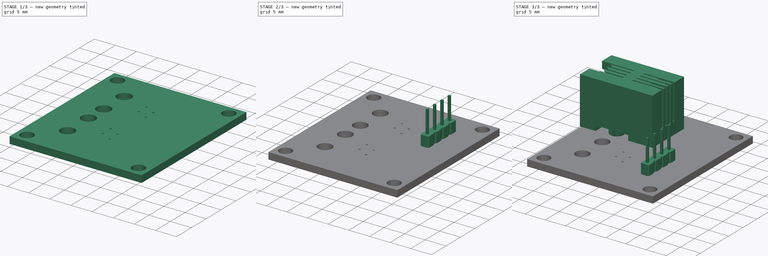
[diagram: build sequence overview — one tinted view per stage of 3, left to right]
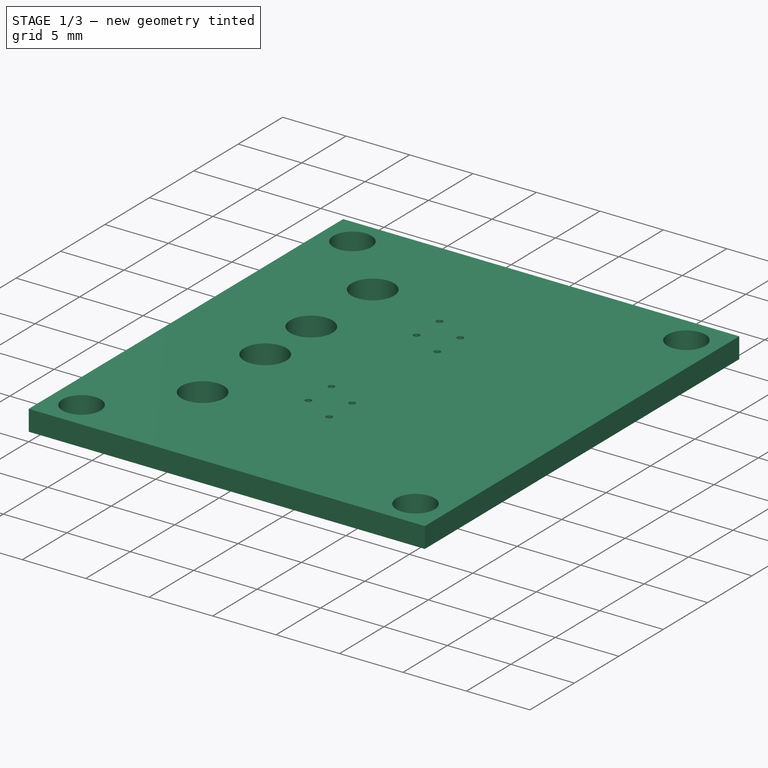
[diagram: stage 1 of 3 — iso view after this stage's code; geometry added in this stage tinted green]
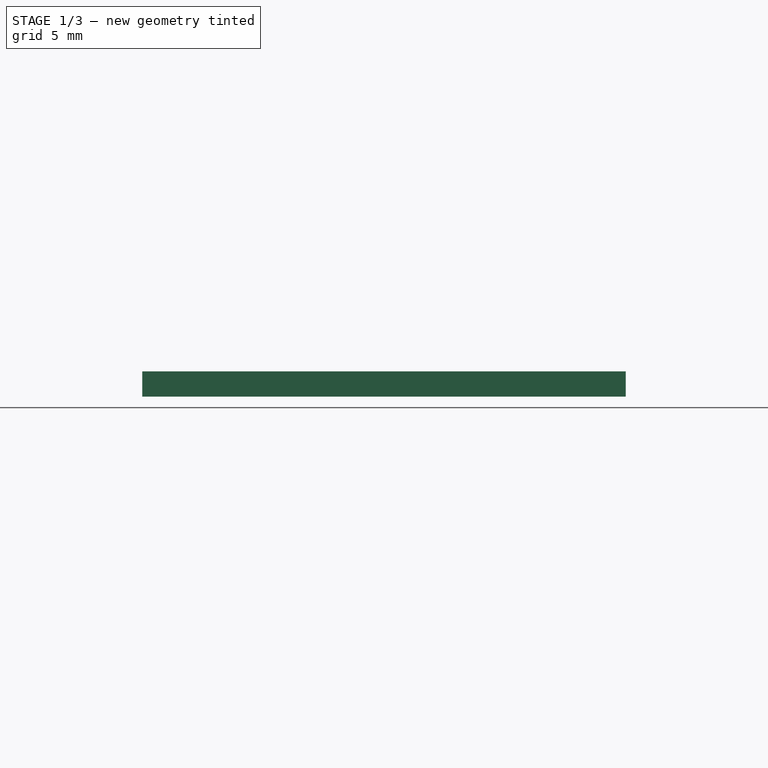
[diagram: stage 1 of 3 — front view after this stage's code; geometry added in this stage tinted green]
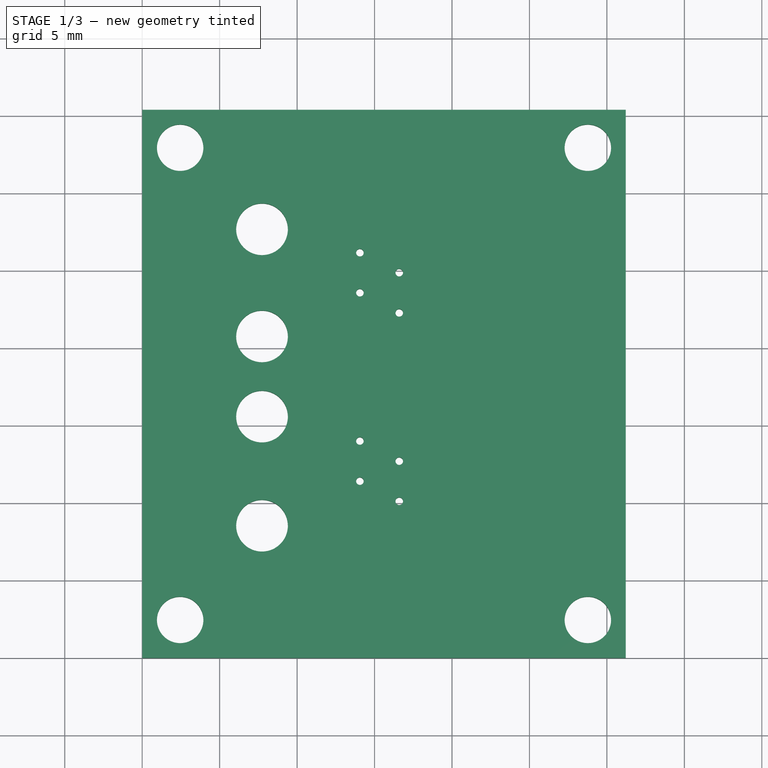
[diagram: stage 1 of 3 — top view after this stage's code; geometry added in this stage tinted green]
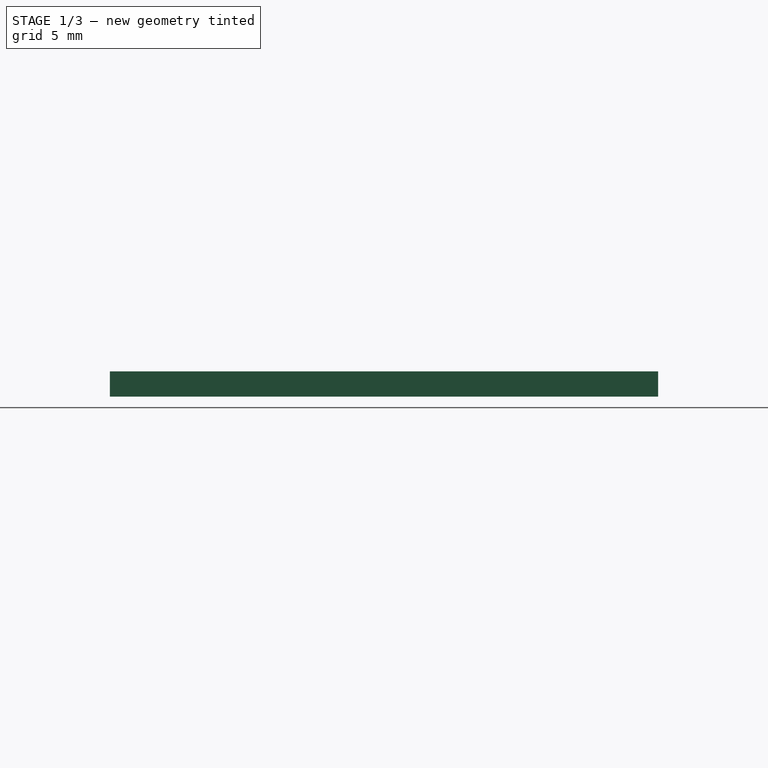
[diagram: stage 1 of 3 — right view after this stage's code; geometry added in this stage tinted green]
FCSTD DOCUMENT  (FreeCAD 0.16R6138 (Git))
Label: RJ9_PCB
License: CreativeCommons Attribution
LicenseURL: http://creativecommons.org/licenses/by/4.0/
objects: Part::Feature×6, App::DocumentObjectGroup×6, Sketcher::SketchObject×2, Part::FeaturePython×2, Part::MultiFuse×2, PartDesign::Pad×1, PartDesign::Pocket×1
note: 16 computed .brp shape members not serialized (recipe doc carries the construction recipe); baked Part::Feature solids carry a one-line shape summary decoded from their .brp

FEATURE [Part::Feature] Part__Feature  label="RJ9"
  Placement = pos=(9.04291,12.0526,1.87734) rot=(0,0,1;3.14159rad)
  shape: bbox 18 x 11.18 x 15.42 mm, 163 faces (baked)
FEATURE [Part::Feature] Part__Feature001  label="broches"
  Placement = pos=(0,0,0.13) rot=(0,0,1;0rad)
  shape: bbox 9.62 x 2 x 8 mm, 70 faces (baked)
FEATURE [Part::Feature] Part__Feature031  label="COMPOUND031"
  shape: bbox 2 x 2 x 1 mm, 8 faces (baked)
FEATURE [Part::Feature] Part__Feature035  label="COMPOUND035"
  shape: bbox 2 x 2 x 1 mm, 8 faces (baked)
FEATURE [Part::Feature] Part__Feature036  label="COMPOUND036"
  shape: bbox 2 x 2 x 1 mm, 8 faces (baked)
FEATURE [Part::Feature] Part__Feature032  label="COMPOUND032"
  shape: bbox 2 x 2 x 1 mm, 8 faces (baked)
FEATURE [Sketcher::SketchObject] Sketch
  sketch-geometry (16):
    g0: LineSegment StartX=31.22 StartY=35.39 StartZ=0 EndX=0 EndY=35.39 EndZ=0
    g1: LineSegment StartX=0 StartY=35.39 StartZ=0 EndX=0 EndY=0 EndZ=0
    g2: LineSegment StartX=0 StartY=0 StartZ=0 EndX=31.22 EndY=0 EndZ=0
    g3: LineSegment StartX=31.22 StartY=0 StartZ=0 EndX=31.22 EndY=35.39 EndZ=0
    g4: Circle CenterX=2.45 CenterY=32.94 CenterZ=0 NormalX=0 NormalY=0 NormalZ=1 Radius=1.5
    g5: Circle CenterX=2.45 CenterY=2.45 CenterZ=0 NormalX=0 NormalY=0 NormalZ=1 Radius=1.5
    g6: Circle CenterX=28.77 CenterY=32.94 CenterZ=0 NormalX=0 NormalY=0 NormalZ=1 Radius=1.5
    g7: Circle CenterX=28.77 CenterY=2.45 CenterZ=0 NormalX=0 NormalY=0 NormalZ=1 Radius=1.5
    g8: LineSegment [constr] StartX=0 StartY=32.94 StartZ=0 EndX=2.45 EndY=32.94 EndZ=0
    g9: LineSegment [constr] StartX=2.45 StartY=35.39 StartZ=0 EndX=2.45 EndY=32.94 EndZ=0
    g10: LineSegment [constr] StartX=28.77 StartY=35.39 StartZ=0 EndX=28.77 EndY=32.94 EndZ=0
    g11: LineSegment [constr] StartX=31.22 StartY=32.94 StartZ=0 EndX=28.77 EndY=32.94 EndZ=0
    g12: LineSegment [constr] StartX=31.22 StartY=2.45 StartZ=0 EndX=28.77 EndY=2.45 EndZ=0
    g13: LineSegment [constr] StartX=28.77 StartY=0 StartZ=0 EndX=28.77 EndY=2.45 EndZ=0
    g14: LineSegment [constr] StartX=2.45 StartY=0 StartZ=0 EndX=2.45 EndY=2.45 EndZ=0
    g15: LineSegment [constr] StartX=0 StartY=2.45 StartZ=0 EndX=2.45 EndY=2.45 EndZ=0
  constraints (47):
    c: Coincident(g0,g1)
    c: Coincident(g1,g2)
    c: Coincident(g2,g3)
    c: Coincident(g3,g0)
    c: Horizontal(g0)
    c: Horizontal(g2)
    c: Vertical(g1)
    c: Vertical(g3)
    c: Coincident(g1,g-1)
    c: Distance(g3) = 35.39
    c: Radius(g4) = 1.5
    c: DistanceX(g-2,g4) = 2.45
    c: Distance(g4,g0) = 2.45
    c: Equal(g6,g7)
    c: Equal(g7,g5)
    c: Equal(g5,g4)
    c: Distance(g0) = 31.22
    c: PointOnObject(g8,g1)
    c: Horizontal(g8)
    c: PointOnObject(g9,g0)
    c: Vertical(g9)
    c: Coincident(g8,g4)
    c: Coincident(g9,g4)
    c: PointOnObject(g10,g0)
    c: Vertical(g10)
    c: PointOnObject(g11,g3)
    c: Horizontal(g11)
    c: PointOnObject(g12,g3)
    c: Horizontal(g12)
    c: PointOnObject(g13,g2)
    c: Vertical(g14)
    c: PointOnObject(g15,g1)
    c: Horizontal(g15)
    c: Vertical(g13)
    c: Coincident(g13,g7)
    c: Coincident(g14,g5)
    c: Coincident(g15,g5)
    c: Coincident(g12,g7)
    c: Coincident(g10,g6)
    c: Coincident(g11,g6)
    c: Equal(g9,g10)
    c: Equal(g10,g14)
    c: Equal(g14,g13)
    c: PointOnObject(g14,g2)
    c: Equal(g12,g11)
    c: Equal(g11,g15)
    c: Equal(g15,g8)
FEATURE [PartDesign::Pad] Pad  label="PCB_001"
  Length = 1.63
  Length2 = 100
  Sketch = -> Sketch
  Type = 0
FEATURE [App::DocumentObjectGroup] Groupe003  label="GR_broches"
  Group = -> [Fusion001,Clone001]
FEATURE [App::DocumentObjectGroup] Groupe  label="Import"
  Group = -> [Groupe002,Groupe003,Groupe004]
FEATURE [Sketcher::SketchObject] Sketch001
  Placement = pos=(0,0,0) rot=(1,0,0;3.14159rad)
  Support = -> Pad [Face9]
  sketch-geometry (15):
    g0: Circle CenterX=7.73473 CenterY=-8.53341 CenterZ=0 NormalX=0 NormalY=0 NormalZ=1 Radius=1.6687
    g1: LineSegment [constr] StartX=7.73473 StartY=-8.53341 StartZ=0 EndX=7.73473 EndY=-27.6737 EndZ=0
    g2: Circle CenterX=7.73473 CenterY=-15.5784 CenterZ=0 NormalX=0 NormalY=0 NormalZ=1 Radius=1.6687
    g3: Circle CenterX=7.73473 CenterY=-20.7561 CenterZ=0 NormalX=0 NormalY=0 NormalZ=1 Radius=1.6687
    g4: Circle CenterX=7.73473 CenterY=-27.6737 CenterZ=0 NormalX=0 NormalY=0 NormalZ=1 Radius=1.6687
    g5: Circle CenterX=16.5944 CenterY=-10.1126 CenterZ=0 NormalX=0 NormalY=0 NormalZ=1 Radius=0.244992
    g6: Circle CenterX=14.0545 CenterY=-11.4126 CenterZ=0 NormalX=0 NormalY=0 NormalZ=1 Radius=0.244992
    g7: Circle CenterX=14.0545 CenterY=-14.0043 CenterZ=0 NormalX=0 NormalY=0 NormalZ=1 Radius=0.244992
    g8: Circle CenterX=16.5944 CenterY=-12.7034 CenterZ=0 NormalX=0 NormalY=0 NormalZ=1 Radius=0.244992
    g9: Circle CenterX=16.5944 CenterY=-22.2774 CenterZ=0 NormalX=0 NormalY=0 NormalZ=1 Radius=0.244992
    g10: Circle CenterX=16.5944 CenterY=-24.8728 CenterZ=0 NormalX=0 NormalY=0 NormalZ=1 Radius=0.244992
    g11: Circle CenterX=14.0545 CenterY=-23.5787 CenterZ=0 NormalX=0 NormalY=0 NormalZ=1 Radius=0.244992
    g12: Circle CenterX=14.0545 CenterY=-26.1633 CenterZ=0 NormalX=0 NormalY=0 NormalZ=1 Radius=0.244992
    g13: LineSegment [constr] StartX=16.5944 StartY=-10.1126 StartZ=0 EndX=16.5944 EndY=-24.8728 EndZ=0
    g14: LineSegment [constr] StartX=14.0545 StartY=-11.4126 StartZ=0 EndX=14.0545 EndY=-26.1633 EndZ=0
  constraints (45):
    c: DistanceX(g0) = 7.73473
    c: DistanceY(g0) = -8.53341
    c: Radius(g0) = 1.6687
    c: Vertical(g1)
    c: Coincident(g1,g0)
    c: PointOnObject(g2,g1)
    c: PointOnObject(g3,g1)
    c: PointOnObject(g4,g1)
    c: Equal(g2,g0)
    c: Equal(g0,g3)
    c: Equal(g3,g4)
    c: DistanceY(g4) = -27.6737
    c: DistanceY(g3) = -20.7561
    c: DistanceY(g2) = -15.5784
    c: Coincident(g1,g4)
    c: Radius(g5) = 0.244992
    c: DistanceX(g5) = 16.5944
    c: DistanceY(g5) = -10.1126
    c: Equal(g6,g8)
    c: Equal(g8,g5)
    c: Equal(g5,g7)
    c: Equal(g7,g9)
    c: Equal(g9,g11)
    c: Equal(g11,g10)
    c: Equal(g10,g12)
    c: Vertical(g13)
    c: Coincident(g13,g5)
    c: PointOnObject(g8,g13)
    c: DistanceY(g8) = -12.7034
    c: PointOnObject(g9,g13)
    c: PointOnObject(g10,g13)
    c: DistanceY(g9) = -22.2774
    c: DistanceY(g10) = -24.8728
    c: Coincident(g13,g10)
    c: DistanceX(g6) = 14.0545
    c: DistanceY(g6) = -11.4126
    c: Vertical(g14)
    c: Coincident(g14,g6)
    c: PointOnObject(g7,g14)
    c: PointOnObject(g11,g14)
    c: PointOnObject(g12,g14)
    c: DistanceY(g7) = -14.0043
    c: DistanceY(g11) = -23.5787
    c: DistanceY(g12) = -26.1633
    c: Coincident(g14,g12)
FEATURE [PartDesign::Pocket] Pocket  label="PCB_002"
  Length = 5
  Sketch = -> Sketch001
  Type = 0
FEATURE [App::DocumentObjectGroup] Groupe005  label="GR_PCB"
  Group = -> [Pad,Pocket]
FEATURE [App::DocumentObjectGroup] Groupe001  label="Pieces"
  Group = -> [Groupe005]
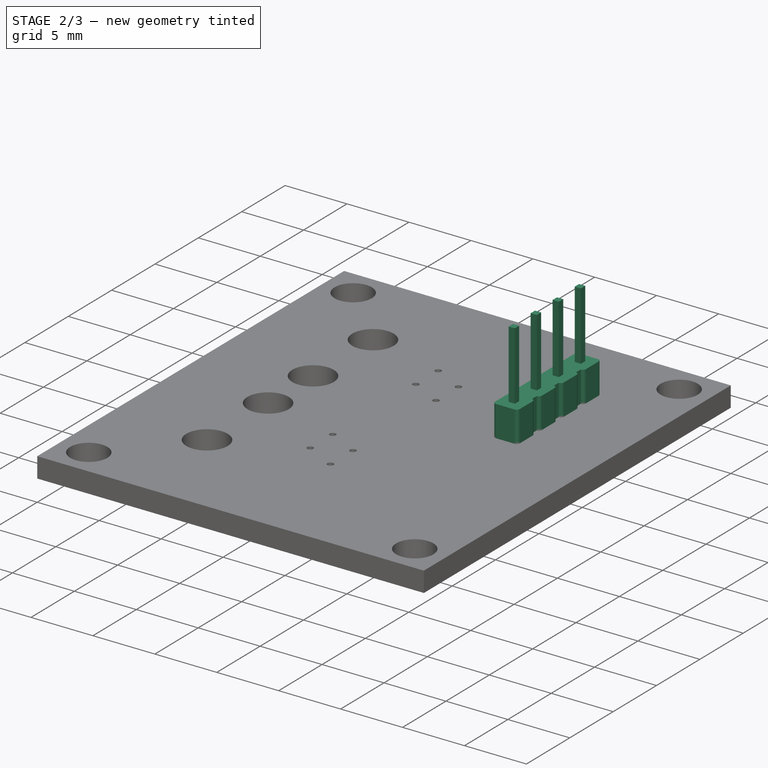
[diagram: stage 2 of 3 — iso view after this stage's code; geometry added in this stage tinted green]
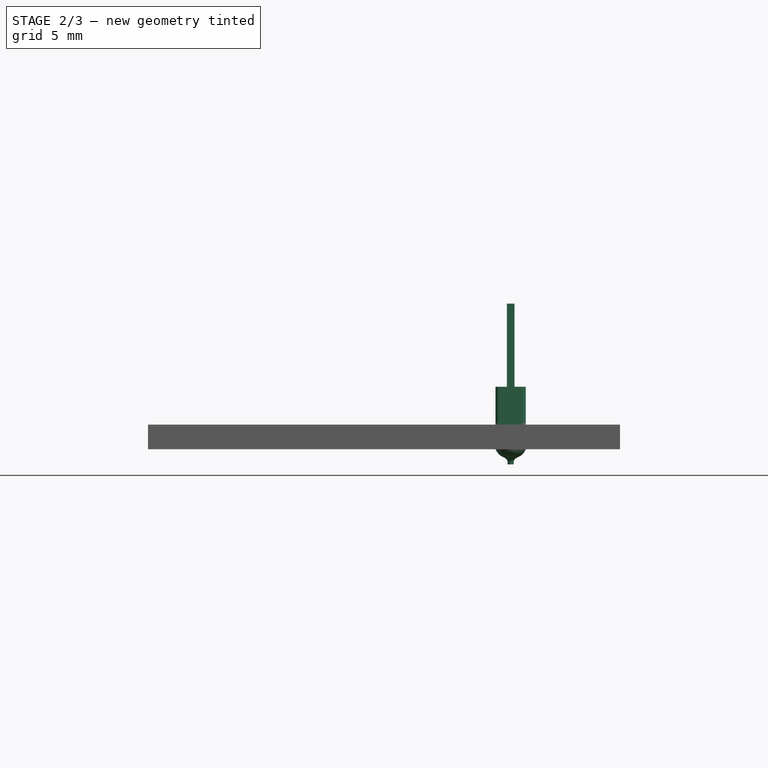
[diagram: stage 2 of 3 — front view after this stage's code; geometry added in this stage tinted green]
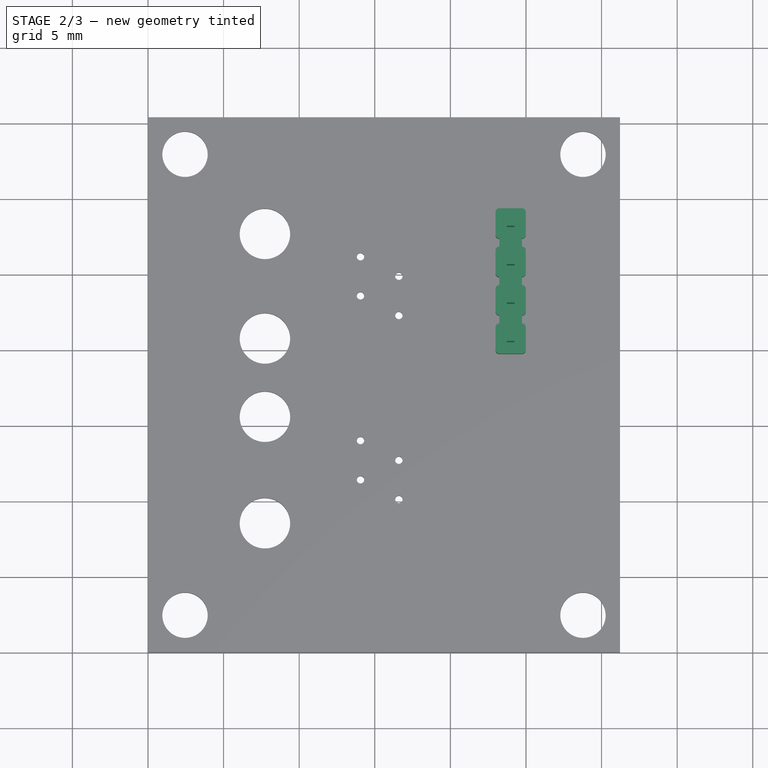
[diagram: stage 2 of 3 — top view after this stage's code; geometry added in this stage tinted green]
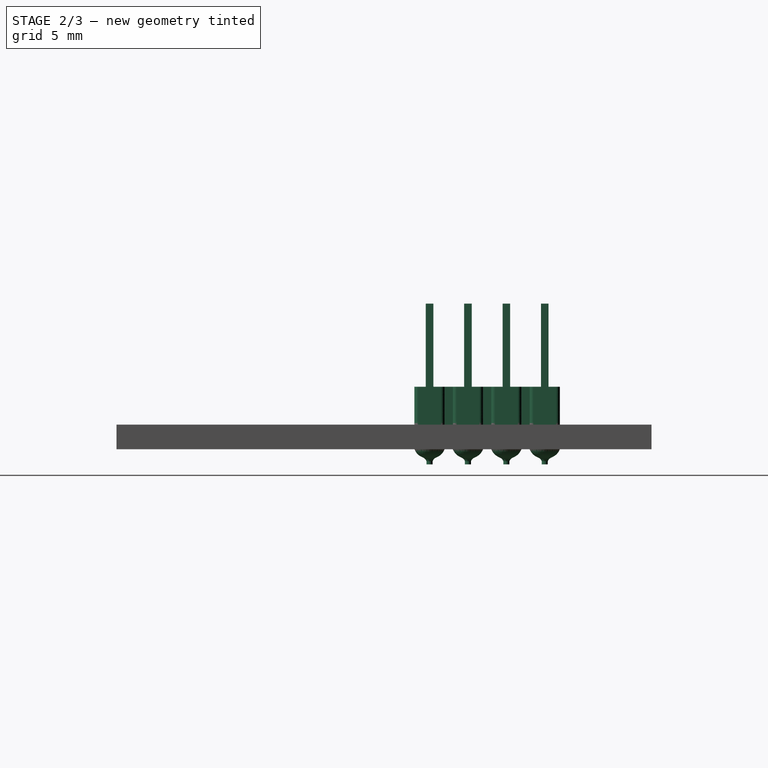
[diagram: stage 2 of 3 — right view after this stage's code; geometry added in this stage tinted green]
FEATURE [App::DocumentObjectGroup] Groupe002  label="GR_RJ9"
  Group = -> [Part__Feature,Clone]
FEATURE [Part::MultiFuse] Fusion
  Shapes = -> [Part__Feature031,Part__Feature032,Part__Feature035,Part__Feature036]
FEATURE [Part::MultiFuse] Fusion001
  Placement = pos=(52.9877,3.58769,5.17686e-06) rot=(0,0,1;1.5708rad)
  Shapes = -> [Part__Feature001,Fusion]
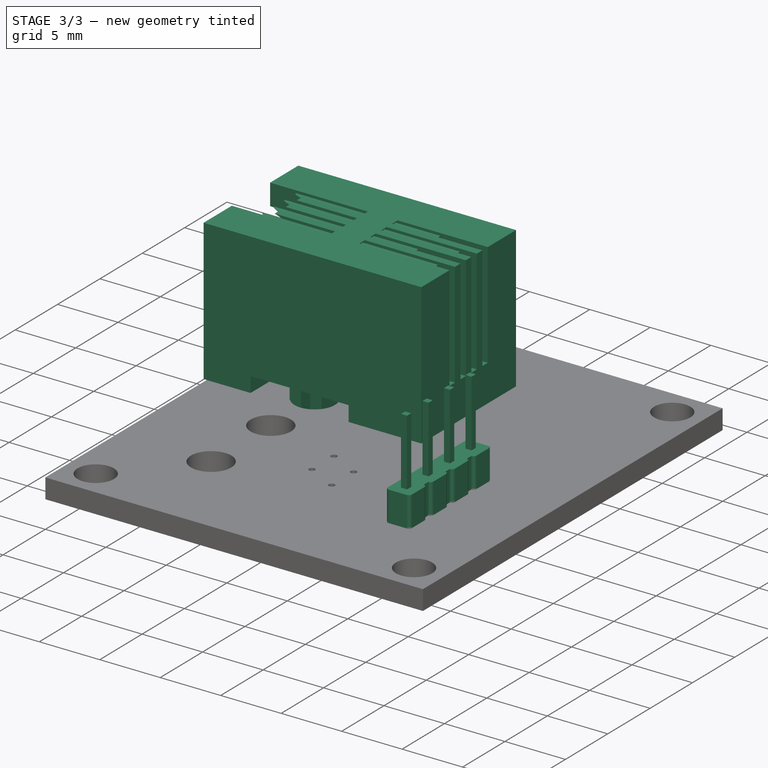
[diagram: stage 3 of 3 — iso view after this stage's code; geometry added in this stage tinted green]
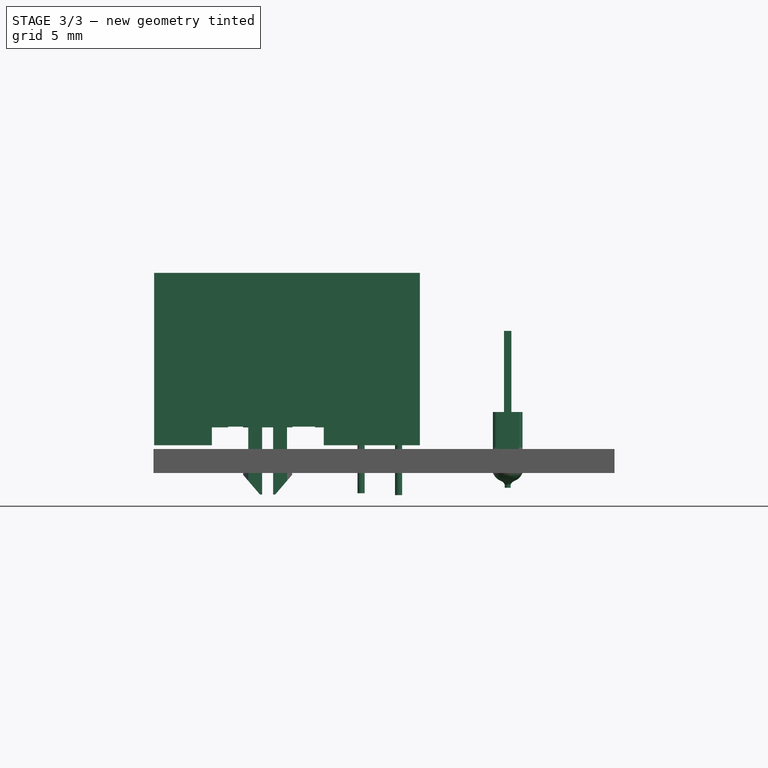
[diagram: stage 3 of 3 — front view after this stage's code; geometry added in this stage tinted green]
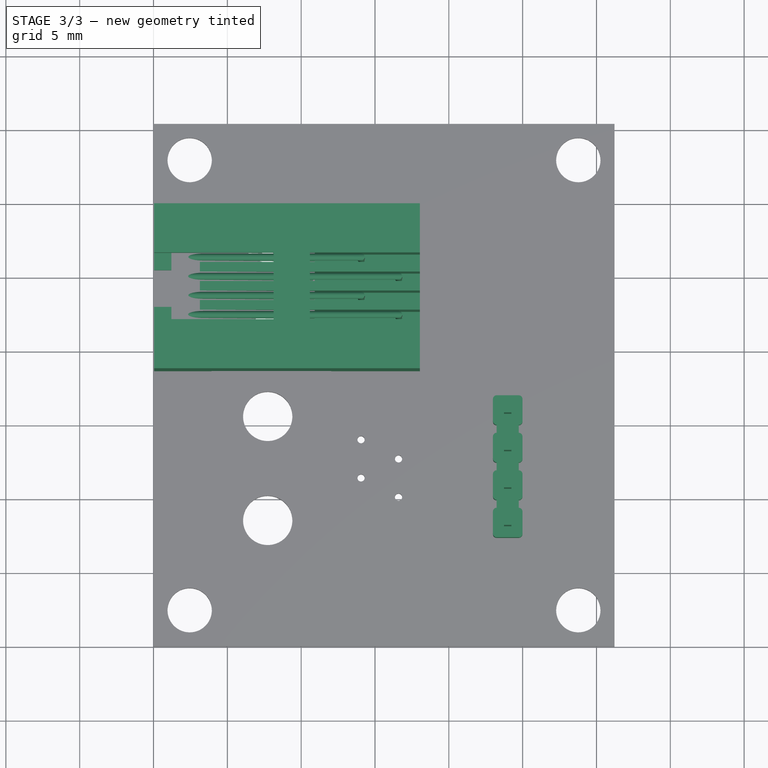
[diagram: stage 3 of 3 — top view after this stage's code; geometry added in this stage tinted green]
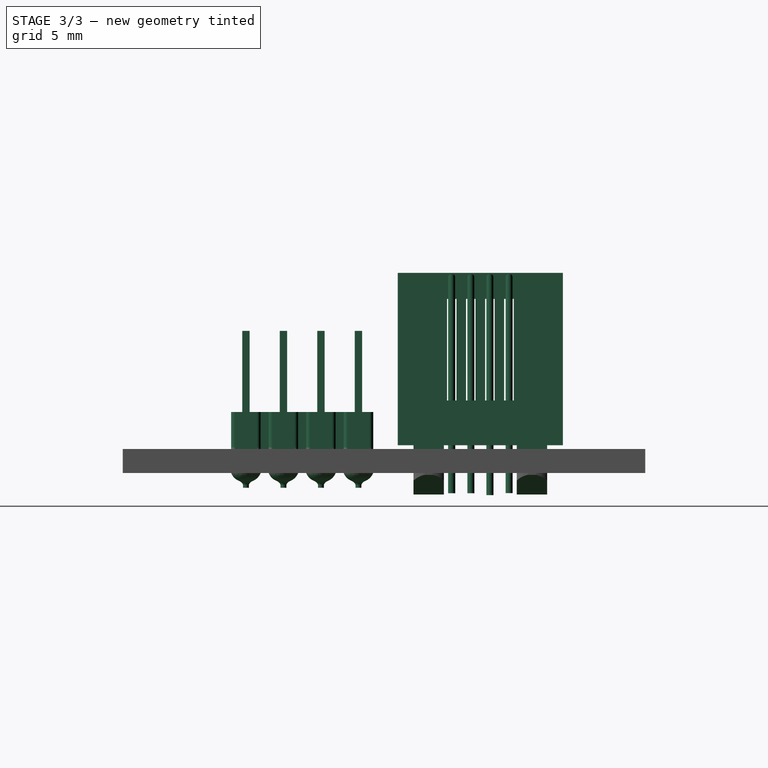
[diagram: stage 3 of 3 — right view after this stage's code; geometry added in this stage tinted green]
FEATURE [App::DocumentObjectGroup] Groupe004  label="GR_soudures"
FEATURE [Part::FeaturePython] Clone  label="Clone of RJ9"  # Draft clone (typed FeaturePython)
  Objects = -> [Part__Feature]
  Placement = pos=(9.04291,24.2185,1.87734) rot=(0,0,1;3.14159rad)
  Scale = (1,1,1)
FEATURE [Part::FeaturePython] Clone001  label="Clone of Fusion001"  # Draft clone (typed FeaturePython)
  Objects = -> [Fusion001]
  Placement = pos=(52.9877,-8.7761,4.31405e-06) rot=(0,0,1;1.5708rad)
  Scale = (1,1,1)
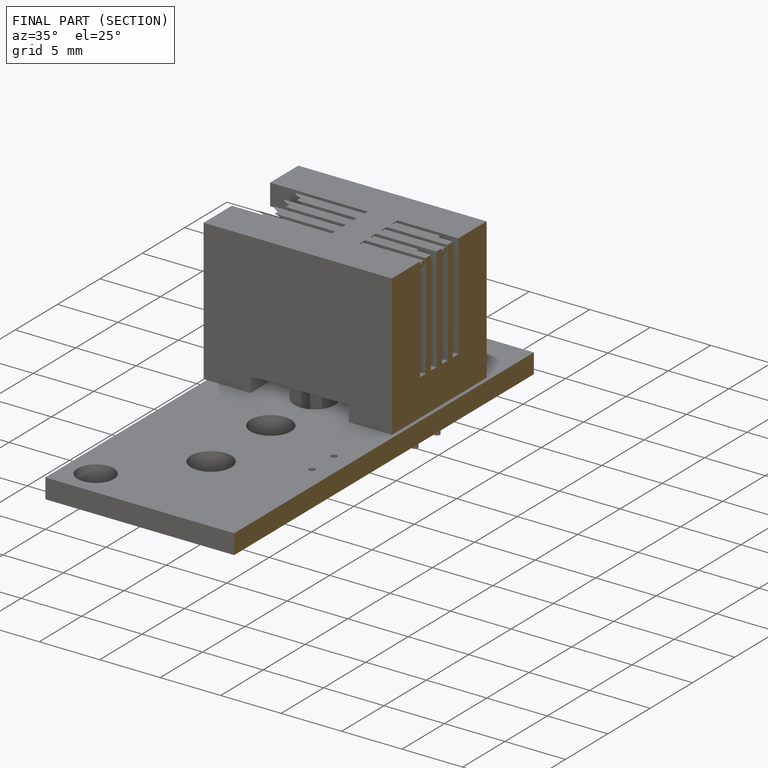
[diagram: finished part — half-section view (interior)]
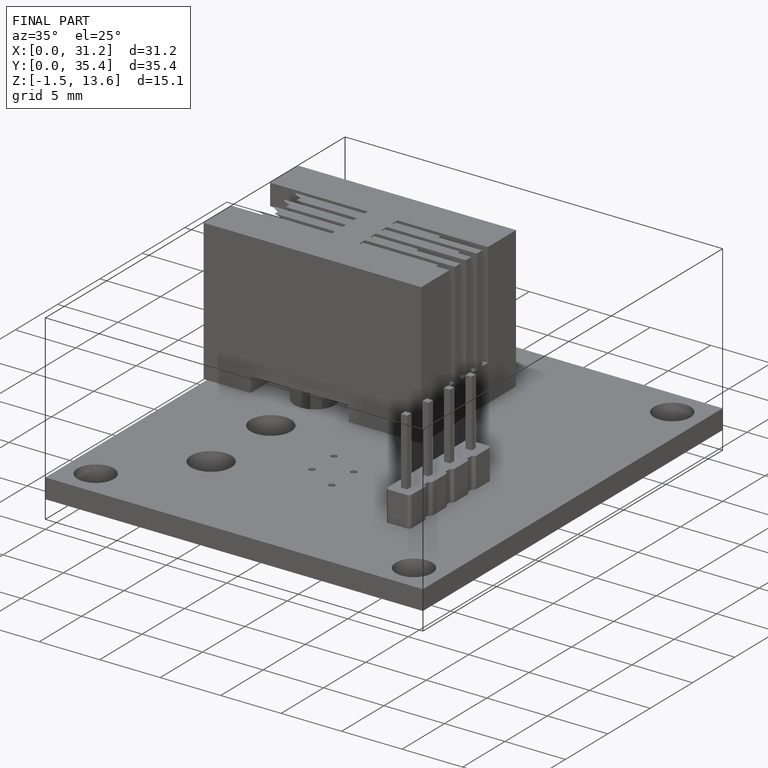
[diagram: finished part — iso view with bounding-box wireframe]
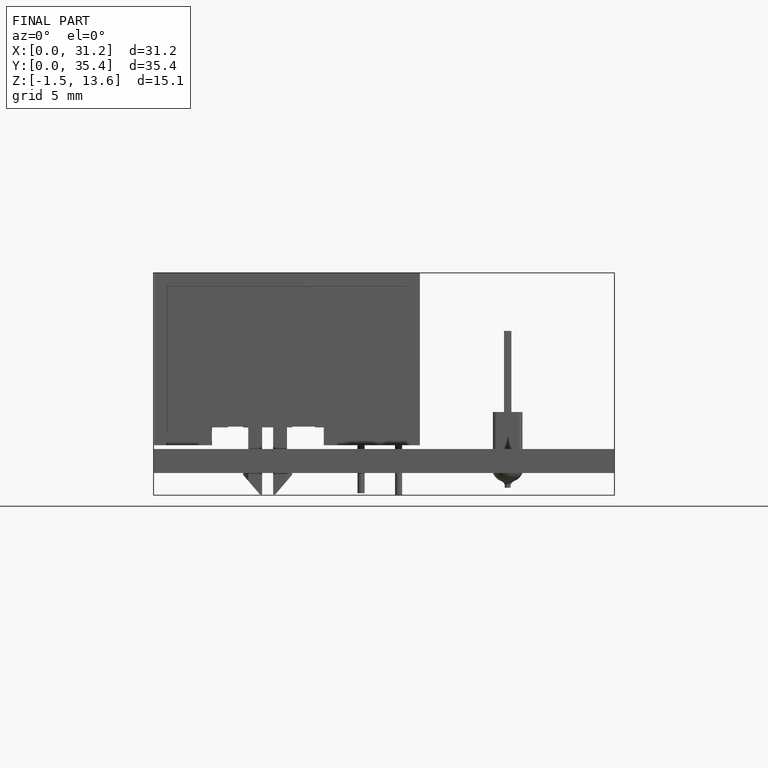
[diagram: finished part — front view with bounding-box wireframe]
